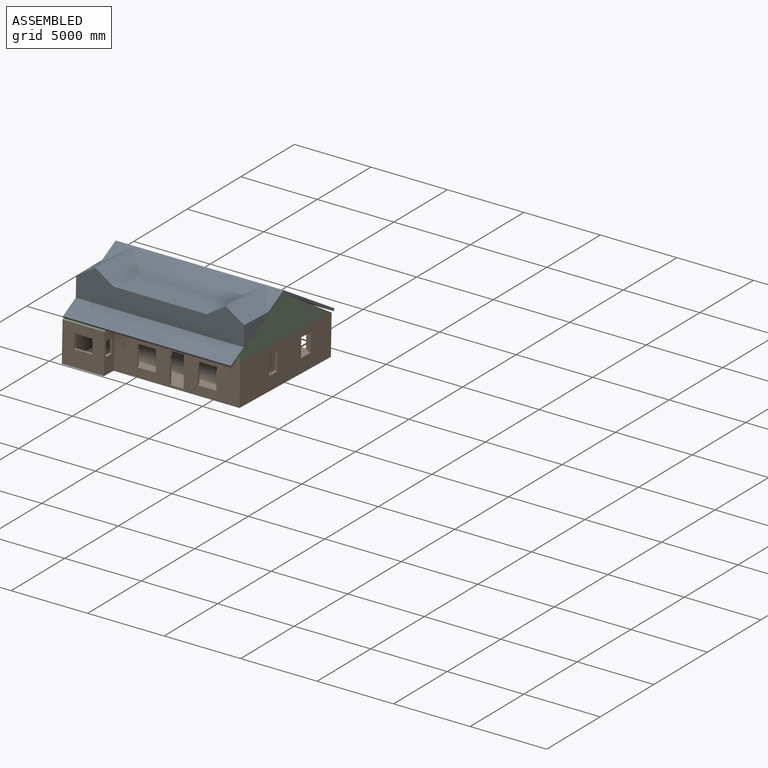
[diagram: assembled view]
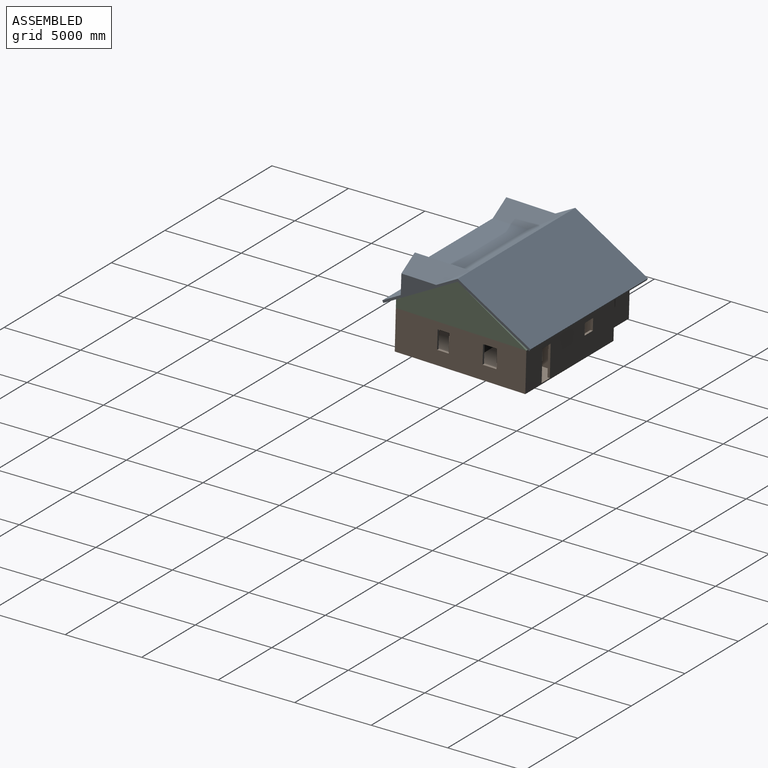
[diagram: assembled view, second angle]
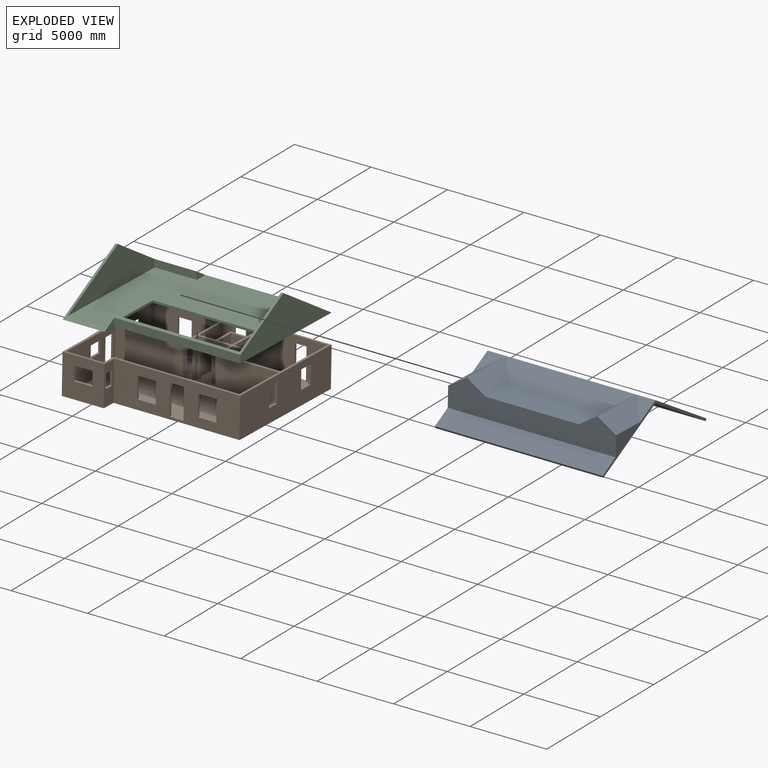
[diagram: exploded view]
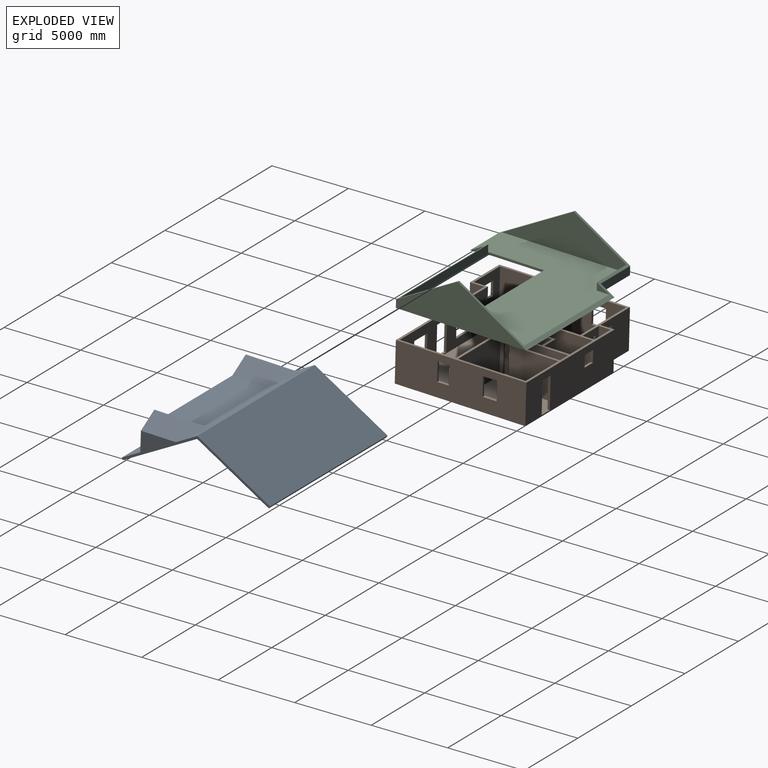
[diagram: exploded view, second angle]
ASSEMBLY  parts=3 mates=5
PART A: 26 faces, bbox 10972.8x9692x2878.7 mm
  f0: plane 3494.48x1174.39mm, normal (0.54,0,-0.84), area 3949000.4mm2, adj f1,f7,f15,f25
  f1: plane 6185.62x2160.49mm, normal (0,0,-1), area 13363987.1mm2, adj f0,f2,f7,f25
  f2: plane 3494.48x1174.39mm, normal (-0.54,0,-0.84), area 3949000.4mm2, adj f1,f7,f16,f25
  f3: plane 1384.88x1219.2mm, normal (0,-0.49,0.87), area 970349.6mm2, adj f9,f13,f23
  f4: plane 8534.4x1384.88mm, normal (0,-0.49,0.87), area 11644194.9mm2, adj f9,f20,f21,f22
  f5: plane 10972.8x1188.42mm, normal (0,-0.49,0.87), area 14988490.2mm2, adj f10,f12,f13,f24
  f6: plane 1384.88x1219.2mm, normal (0,-0.49,0.87), area 970349.6mm2, adj f9,f12,f19
  f7: plane 10972.8x4770.89mm, normal (0,0.49,-0.87), area 32014847.3mm2, adj f0,f1,f2,f10,f11,f12,f13,f14
  f8: plane 10972.8x132.59mm, normal (0,0.87,-0.49), area 1672254.7mm2, adj f9,f11,f12,f13
  f9: plane 10972.8x4846.02mm, normal (0,0.49,0.87), area 61118478.5mm2, adj f3,f4,f6,f8,f12,f13
  f10: plane 10972.8x132.59mm, normal (0,-0.87,-0.49), area 1672254.7mm2, adj f5,f7,f12,f13
  f11: plane 10972.8x4770.89mm, normal (0,-0.49,-0.87), area 60170867.5mm2, adj f7,f8,f12,f13
  f12: plane 9692.04x2878.67mm, normal (1,0,0), area 3148057.6mm2, adj f5,f6,f7,f8,f9,f10,f11,f19
  f13: plane 9692.04x2878.67mm, normal (-1,0,0), area 3148057.6mm2, adj f3,f5,f7,f8,f9,f10,f11,f23
  f14: plane 2282.71x1204.73mm, normal (-1,0,0), area 1469421.1mm2, adj f7,f15,f18,f25
  f15: plane 3494.48x1066.8mm, normal (-0.54,0,-0.84), area 3664738.1mm2, adj f0,f7,f14,f25
  f16: plane 3494.48x1066.8mm, normal (0.54,0,-0.84), area 3664738.1mm2, adj f2,f7,f17,f25
  f17: plane 2282.71x1204.73mm, normal (1,0,0), area 1469421.1mm2, adj f7,f16,f18,f25
  f18: plane 10668x156.72mm, normal (0,0,1), area 1671888mm2, adj f7,f14,f17,f25
  f19: plane 3657.6x1219.2mm, normal (0.54,0,0.84), area 4299283.7mm2, adj f6,f12,f20,f24
  f20: plane 3657.6x1219.2mm, normal (-0.54,0,0.84), area 4299283.7mm2, adj f4,f19,f21,f24
  f21: plane 6096x2272.72mm, normal (0,0,1), area 13854473mm2, adj f4,f20,f22,f24
  f22: plane 3657.6x1219.2mm, normal (0.54,0,0.84), area 4299283.7mm2, adj f4,f21,f23,f24
  f23: plane 3657.6x1219.2mm, normal (-0.54,0,0.84), area 4299283.7mm2, adj f3,f13,f22,f24
  f24: plane 10972.8x2072.64mm, normal (0,-1,0), area 16045140.6mm2, adj f5,f12,f13,f19,f20,f21,f22,f23
  f25: plane 10668x1891.4mm, normal (0,1,0), area 13881271.9mm2, adj f0,f1,f2,f14,f15,f16,f17,f18
PART B: 114 faces, bbox 10972.8x9448.8x2590.8 mm
  f0: plane 2743.2x2590.8mm, normal (0,1,0), area 5992246.1mm2, adj f7,f21,f46,f47,f107,f108,f109,f110
  f1: plane 4267.2x2514.6mm, normal (0,-1,0), area 8047725.8mm2, adj f37,f44,f46,f49,f107,f108,f109,f110
  f2: plane 8229.6x2590.8mm, normal (0,1,0), area 19172864.9mm2, adj f20,f21,f46,f47,f49,f100,f101,f102
  f3: plane 3048x2514.6mm, normal (0,-1,0), area 6096762mm2, adj f23,f24,f46,f49,f104,f105,f106
  f4: plane 2514.6x2133.6mm, normal (0,-1,0), area 4784506.6mm2, adj f29,f30,f46,f49,f100,f101,f102,f103
  f5: plane 2514.6x1219.2mm, normal (1,0,0), area 1498061.5mm2, adj f25,f40,f46,f49,f97,f98,f99
  f6: plane 4572x2514.6mm, normal (1,0,0), area 9232239.6mm2, adj f11,f38,f46,f49,f81,f82,f83,f84
  f7: plane 8534.4x2590.8mm, normal (-1,0,0), area 18731575.4mm2, adj f0,f22,f46,f47,f49,f77,f78,f79
  f8: plane 2514.6x914.4mm, normal (0,-1,0), area 2299350.2mm2, adj f9,f45,f46,f49
  f9: plane 2514.6x1219.2mm, normal (-1,0,0), area 3065800.3mm2, adj f8,f10,f46,f49
  f10: plane 2514.6x914.4mm, normal (0,1,0), area 731611.4mm2, adj f9,f45,f46,f49,f94,f95,f96
  f11: plane 4419.6x2514.6mm, normal (0,-1,0), area 11113526.2mm2, adj f6,f12,f46,f49
  f12: plane 2514.6x1371.6mm, normal (1,0,0), area 1881286.6mm2, adj f11,f13,f46,f49,f85,f86,f87
  f13: plane 2514.6x2133.6mm, normal (0,-1,0), area 2229673mm2, adj f12,f14,f46,f49,f91,f92,f93,f94
  f14: plane 2514.6x1371.6mm, normal (-1,0,0), area 1881286.6mm2, adj f13,f15,f46,f49,f97,f98,f99
  f15: plane 4114.8x2514.6mm, normal (0,-1,0), area 10347076.1mm2, adj f14,f16,f46,f49
  f16: plane 3657.6x2514.6mm, normal (-1,0,0), area 8268370.6mm2, adj f15,f17,f46,f49,f70,f71,f72,f73
  f17: plane 8229.6x2514.6mm, normal (0,1,0), area 15538033.4mm2, adj f16,f18,f46,f49,f50,f51,f52,f53
  f18: plane 2514.6x914.4mm, normal (-1,0,0), area 1741932mm2, adj f17,f38,f46,f49,f74,f75,f76
  f19: plane 8229.6x2590.8mm, normal (0,-1,0), area 16165129mm2, adj f20,f39,f46,f47,f50,f51,f52,f53
  f20: plane 8534.4x2590.8mm, normal (1,0,0), area 20067056.6mm2, adj f2,f19,f46,f47,f66,f67,f68,f69
  f21: plane 2590.8x914.4mm, normal (-1,0,0), area 2369027.5mm2, adj f0,f2,f46,f47
  f22: plane 2743.2x2590.8mm, normal (0,-1,0), area 5992246.1mm2, adj f7,f39,f46,f47,f62,f63,f64,f65
  f23: plane 3200.4x2514.6mm, normal (1,0,0), area 8047725.8mm2, adj f3,f40,f46,f49
  f24: plane 4419.6x2514.6mm, normal (-1,0,0), area 9998689.7mm2, adj f3,f25,f46,f49,f66,f67,f68,f69
  f25: plane 3962.4x2514.6mm, normal (0,1,0), area 9963851mm2, adj f5,f24,f46,f49
  f26: plane 3048x2514.6mm, normal (1,0,0), area 7664500.8mm2, adj f27,f41,f46,f48
  f27: plane 2514.6x762mm, normal (0,-1,0), area 1916125.2mm2, adj f26,f28,f46,f48
  f28: plane 3048x2514.6mm, normal (-1,0,0), area 7664500.8mm2, adj f27,f41,f46,f48
  f29: plane 3048x2514.6mm, normal (1,0,0), area 7664500.8mm2, adj f4,f42,f46,f49
  f30: plane 2514.6x1676.4mm, normal (-1,0,0), area 4215475.4mm2, adj f4,f31,f46,f49
  f31: plane 2514.6x1066.8mm, normal (0,1,0), area 2682575.3mm2, adj f30,f32,f46,f49
  f32: plane 2514.6x1371.6mm, normal (-1,0,0), area 3449025.4mm2, adj f31,f42,f46,f49
  f33: plane 2514.6x1524mm, normal (0,1,0), area 2264511.6mm2, adj f34,f43,f46,f49,f111,f112,f113
  f34: plane 2514.6x762mm, normal (1,0,0), area 1916125.2mm2, adj f33,f35,f46,f49
  f35: plane 2514.6x1524mm, normal (0,-1,0), area 3832250.4mm2, adj f34,f43,f46,f49
  f36: plane 4267.2x2514.6mm, normal (0,1,0), area 10730301.1mm2, adj f37,f44,f46,f49
  f37: plane 3505.2x2514.6mm, normal (1,0,0), area 7699339.4mm2, adj f1,f36,f46,f49,f77,f78,f79,f80
  f38: plane 2590.8x2514.6mm, normal (0,1,0), area 5156118.7mm2, adj f6,f18,f39,f46,f49,f62,f63,f64
  f39: plane 2590.8x914.4mm, normal (1,0,0), area 1811609.3mm2, adj f19,f22,f38,f46,f47,f74,f75,f76
  f40: plane 2514.6x914.4mm, normal (0,-1,0), area 2299350.2mm2, adj f5,f23,f46,f49
  f41: plane 2514.6x762mm, normal (0,1,0), area 1916125.2mm2, adj f26,f28,f46,f48
  f42: plane 2514.6x1066.8mm, normal (0,1,0), area 1114836.5mm2, adj f29,f32,f46,f49,f91,f92,f93
  f43: plane 2514.6x762mm, normal (-1,0,0), area 1916125.2mm2, adj f33,f35,f46,f49
  f44: plane 3505.2x2514.6mm, normal (-1,0,0), area 7246437.1mm2, adj f1,f36,f46,f49,f85,f86,f87
  f45: plane 2514.6x1219.2mm, normal (1,0,0), area 3065800.3mm2, adj f8,f10,f46,f49
  f46: plane 10972.8x9448.8mm, normal (0,0,1), area 10289011.7mm2, adj f0,f1,f2,f3,f4,f5,f6,f7
  f47: plane 10972.8x9448.8mm, normal (0,0,-1), area 93646264.3mm2, adj f0,f2,f7,f19,f20,f21,f22,f39
  f48: plane 3048x762mm, normal (0,0,1), area 2322576mm2, adj f26,f27,f28,f41
  f49: plane 10820.4x9296.4mm, normal (0,0,1), area 81847578.2mm2, adj f1,f2,f3,f4,f5,f6,f7,f8
  f50: plane 1981.2x152.4mm, normal (1,0,0), area 301934.9mm2, adj f17,f19,f51,f52
  f51: plane 914.4x152.4mm, normal (0,0,-1), area 139354.6mm2, adj f17,f19,f50,f53
  f52: plane 914.4x152.4mm, normal (0,0,1), area 139354.6mm2, adj f17,f19,f50,f53
  f53: plane 1981.2x152.4mm, normal (-1,0,0), area 301934.9mm2, adj f17,f19,f51,f52
  f54: plane 1371.6x152.4mm, normal (1,0,0), area 209031.8mm2, adj f17,f19,f55,f56
  f55: plane 1219.2x152.4mm, normal (0,0,-1), area 185806.1mm2, adj f17,f19,f54,f57
  f56: plane 1219.2x152.4mm, normal (0,0,1), area 185806.1mm2, adj f17,f19,f54,f57
  f57: plane 1371.6x152.4mm, normal (-1,0,0), area 209031.8mm2, adj f17,f19,f55,f56
  f58: plane 1219.2x152.4mm, normal (0,0,-1), area 185806.1mm2, adj f17,f19,f59,f60
  f59: plane 1371.6x152.4mm, normal (-1,0,0), area 209031.8mm2, adj f17,f19,f58,f61
  f60: plane 1371.6x152.4mm, normal (1,0,0), area 209031.8mm2, adj f17,f19,f58,f61
  f61: plane 1219.2x152.4mm, normal (0,0,1), area 185806.1mm2, adj f17,f19,f59,f60
  f62: plane 914.4x152.4mm, normal (1,0,0), area 139354.6mm2, adj f22,f38,f63,f64
  f63: plane 1219.2x152.4mm, normal (0,0,-1), area 185806.1mm2, adj f22,f38,f62,f65
  f64: plane 1219.2x152.4mm, normal (0,0,1), area 185806.1mm2, adj f22,f38,f62,f65
  f65: plane 914.4x152.4mm, normal (-1,0,0), area 139354.6mm2, adj f22,f38,f63,f64
  f66: plane 1219.2x152.4mm, normal (0,1,0), area 185806.1mm2, adj f20,f24,f67,f68
  f67: plane 914.4x152.4mm, normal (0,0,-1), area 139354.6mm2, adj f20,f24,f66,f69
  f68: plane 914.4x152.4mm, normal (0,0,1), area 139354.6mm2, adj f20,f24,f66,f69
  f69: plane 1219.2x152.4mm, normal (0,-1,0), area 185806.1mm2, adj f20,f24,f67,f68
  f70: plane 1219.2x152.4mm, normal (0,1,0), area 185806.1mm2, adj f16,f20,f71,f72
  f71: plane 762x152.4mm, normal (0,0,-1), area 116128.8mm2, adj f16,f20,f70,f73
  f72: plane 762x152.4mm, normal (0,0,1), area 116128.8mm2, adj f16,f20,f70,f73
  f73: plane 1219.2x152.4mm, normal (0,-1,0), area 185806.1mm2, adj f16,f20,f71,f72
  f74: plane 609.6x152.4mm, normal (0,0,-1), area 92903mm2, adj f18,f38,f39,f76
  f75: plane 609.6x152.4mm, normal (0,0,1), area 92903mm2, adj f18,f38,f39,f76
  f76: plane 914.4x152.4mm, normal (0,-1,0), area 139354.6mm2, adj f18,f39,f74,f75
  f77: plane 1219.2x152.4mm, normal (0,-1,0), area 185806.1mm2, adj f7,f37,f78,f79
  f78: plane 914.4x152.4mm, normal (0,0,-1), area 139354.6mm2, adj f7,f37,f77,f80
  f79: plane 914.4x152.4mm, normal (0,0,1), area 139354.6mm2, adj f7,f37,f77,f80
  f80: plane 1219.2x152.4mm, normal (0,1,0), area 185806.1mm2, adj f7,f37,f78,f79
  f81: plane 914.4x152.4mm, normal (0,0,-1), area 139354.6mm2, adj f6,f7,f82,f84
  f82: plane 762x152.4mm, normal (0,-1,0), area 116128.8mm2, adj f6,f7,f81,f83
  f83: plane 914.4x152.4mm, normal (0,0,1), area 139354.6mm2, adj f6,f7,f82,f84
  f84: plane 762x152.4mm, normal (0,1,0), area 116128.8mm2, adj f6,f7,f81,f83
  f85: plane 2057.4x152.4mm, normal (0,-1,0), area 313547.8mm2, adj f12,f44,f49,f87
  f86: plane 2057.4x152.4mm, normal (0,1,0), area 313547.8mm2, adj f12,f44,f49,f87
  f87: plane 762x152.4mm, normal (0,0,-1), area 116128.8mm2, adj f12,f44,f85,f86
  f88: plane 2057.4x152.4mm, normal (0,-1,0), area 313547.8mm2, adj f6,f7,f49,f89
  f89: plane 762x152.4mm, normal (0,0,-1), area 116128.8mm2, adj f6,f7,f88,f90
  f90: plane 2057.4x152.4mm, normal (0,1,0), area 313547.8mm2, adj f6,f7,f49,f89
  f91: plane 2057.4x152.4mm, normal (-1,0,0), area 313547.8mm2, adj f13,f42,f49,f93
  f92: plane 2057.4x152.4mm, normal (1,0,0), area 313547.8mm2, adj f13,f42,f49,f93
  f93: plane 762x152.4mm, normal (0,0,-1), area 116128.8mm2, adj f13,f42,f91,f92
  f94: plane 2057.4x152.4mm, normal (-1,0,0), area 313547.8mm2, adj f10,f13,f49,f96
  f95: plane 2057.4x152.4mm, normal (1,0,0), area 313547.8mm2, adj f10,f13,f49,f96
  f96: plane 762x152.4mm, normal (0,0,-1), area 116128.8mm2, adj f10,f13,f94,f95
  f97: plane 2057.4x152.4mm, normal (0,1,0), area 313547.8mm2, adj f5,f14,f49,f98
  f98: plane 762x152.4mm, normal (0,0,-1), area 116128.8mm2, adj f5,f14,f97,f99
  f99: plane 2057.4x152.4mm, normal (0,-1,0), area 313547.8mm2, adj f5,f14,f49,f98
  f100: plane 762x152.4mm, normal (0,0,-1), area 116128.8mm2, adj f2,f4,f101,f103
  f101: plane 762x152.4mm, normal (-1,0,0), area 116128.8mm2, adj f2,f4,f100,f102
  f102: plane 762x152.4mm, normal (0,0,1), area 116128.8mm2, adj f2,f4,f101,f103
  f103: plane 762x152.4mm, normal (1,0,0), area 116128.8mm2, adj f2,f4,f100,f102
  f104: plane 2057.4x152.4mm, normal (-1,0,0), area 313547.8mm2, adj f2,f3,f49,f106
  f105: plane 2057.4x152.4mm, normal (1,0,0), area 313547.8mm2, adj f2,f3,f49,f106
  f106: plane 762x152.4mm, normal (0,0,-1), area 116128.8mm2, adj f2,f3,f104,f105
  f107: plane 914.4x152.4mm, normal (0,0,-1), area 139354.6mm2, adj f0,f1,f108,f110
  f108: plane 1219.2x152.4mm, normal (1,0,0), area 185806.1mm2, adj f0,f1,f107,f109
  f109: plane 914.4x152.4mm, normal (0,0,1), area 139354.6mm2, adj f0,f1,f108,f110
  f110: plane 1219.2x152.4mm, normal (-1,0,0), area 185806.1mm2, adj f0,f1,f107,f109
  f111: plane 2057.4x152.4mm, normal (1,0,0), area 313547.8mm2, adj f1,f33,f49,f113
  f112: plane 2057.4x152.4mm, normal (-1,0,0), area 313547.8mm2, adj f1,f33,f49,f113
  f113: plane 762x152.4mm, normal (0,0,-1), area 116128.8mm2, adj f1,f33,f111,f112
PART C: 18 faces, bbox 10972.8x9448.8x2743.2 mm
  f0: plane 8534.4x2743.2mm, normal (1,0,0), area 12724813.3mm2, adj f11,f12,f16,f17
  f1: plane 914.4x548.64mm, normal (-1,0,0), area 250838.2mm2, adj f2,f12,f17
  f2: plane 2743.2x548.64mm, normal (0,1,0), area 1505029.2mm2, adj f1,f3,f12,f17
  f3: plane 8534.4x2743.2mm, normal (-1,0,0), area 12709135.9mm2, adj f2,f12,f16,f17
  f4: plane 914.4x514.35mm, normal (1,0,0), area 235160.8mm2, adj f11,f12,f16
  f5: plane 8229.6x600.08mm, normal (0,1,0), area 4938377.2mm2, adj f6,f10,f12,f13,f16
  f6: plane 795.87x447.68mm, normal (-1,0,0), area 178144.8mm2, adj f5,f15,f16
  f7: plane 8111.07x2590.8mm, normal (1,0,0), area 11361783.7mm2, adj f8,f15,f16,f17
  f8: plane 2743.2x487.68mm, normal (0,-1,0), area 1337803.8mm2, adj f7,f9,f15,f17
  f9: plane 812.8x487.68mm, normal (1,0,0), area 198193.2mm2, adj f8,f15,f17
  f10: plane 8128x2743.2mm, normal (-1,0,0), area 11939250.3mm2, adj f5,f12,f14,f15,f16,f17
  f11: plane 8229.6x514.35mm, normal (0,-1,0), area 4232894.8mm2, adj f0,f4,f12,f16
  f12: plane 10972.8x9448.8mm, normal (0,0,-1), area 63545679.4mm2, adj f0,f1,f2,f3,f4,f5,f10,f11
  f13: plane 3657.6x152.4mm, normal (1,0,0), area 557418.2mm2, adj f5,f12,f14,f15
  f14: plane 8229.6x152.4mm, normal (0,-1,0), area 1254191mm2, adj f10,f12,f13,f15
  f15: plane 10668x8923.87mm, normal (0,0,1), area 56319887.4mm2, adj f6,f7,f8,f9,f10,f13,f14,f16
  f16: plane 10972.8x4876.8mm, normal (0,-0.49,0.87), area 3902454.1mm2, adj f0,f3,f4,f5,f6,f7,f10,f11
  f17: plane 10972.8x4572mm, normal (0,0.51,0.86), area 4460105mm2, adj f0,f1,f2,f3,f7,f8,f9,f10
PLACE A rot(axis=(-1,0,0),1.8deg) t=(3689.51,-3746.32,4357.42)mm
PLACE B rot(axis=(-1,0,0),1.6deg) t=(3841.91,-3964.76,1606.48)mm
PLACE C rot(axis=(-1,0,0),1.6deg) t=(3841.91,-3892.15,4196.26)mm
MATE planar B.f46 <-> C.f12  axis (0,0.03,1) through (9219.77,1441.3,4046.72)mm
MATE planar C.f11 <-> B.f19  axis (0,-1,0.03) through (10547.51,-3123.24,4431.98)mm
MATE planar A.f13 <-> C.f3  axis (-1,0,0) through (3689.51,-1634.78,6273.7)mm
MATE planar C.f3 <-> B.f7  axis (-1,0,0) through (3689.51,674.68,4997.42)mm
MATE planar A.f7 <-> C.f16  axis (0,0.47,-0.88) through (9175.91,-1721.96,5422.56)mm
